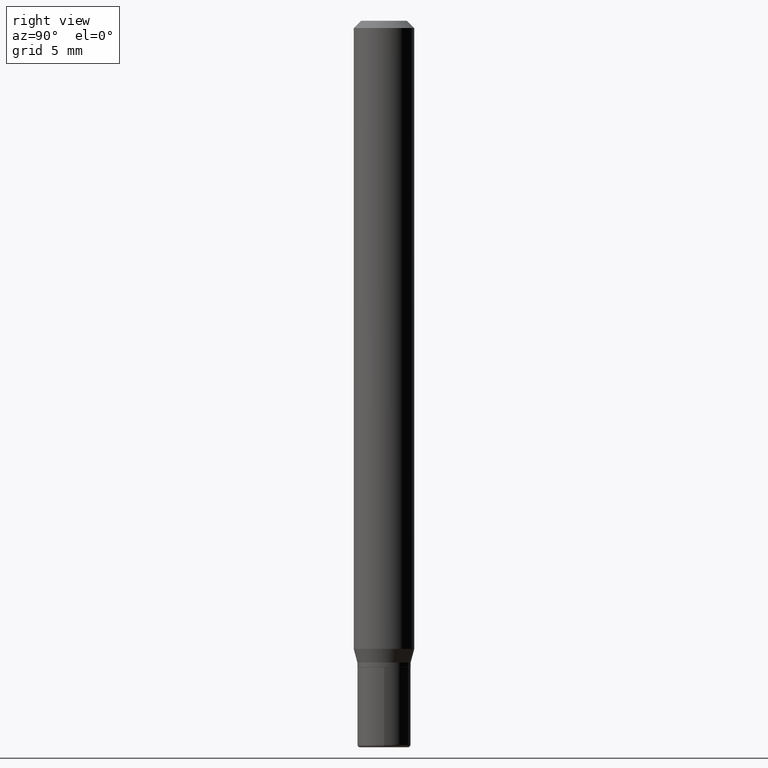
[diagram: clean part render]
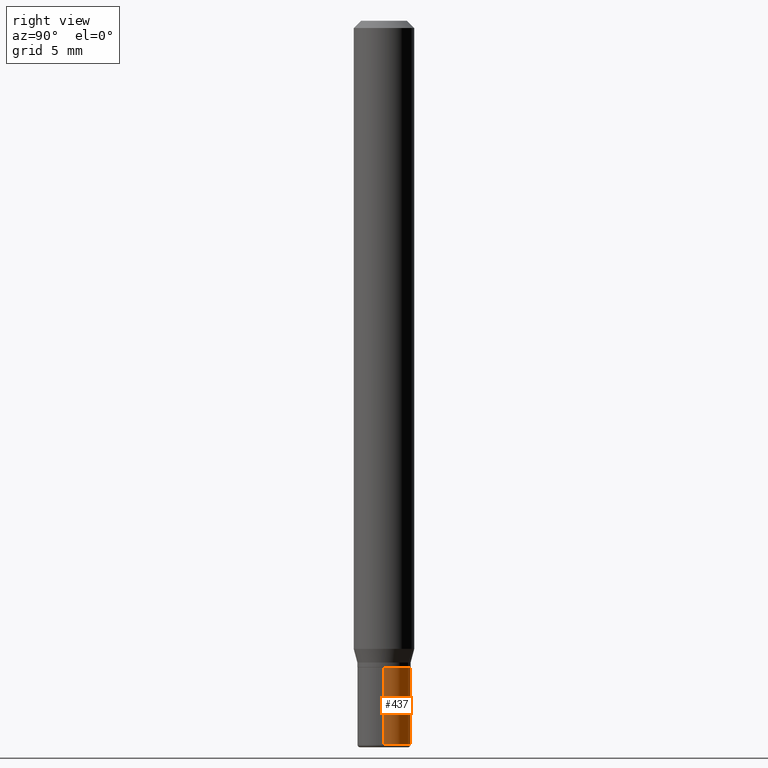
[diagram: same view with one face highlighted and labeled with its STEP entity id]
A machine part, right view. The second image highlights one B-rep face of the part: STEP entity #437.
In plain terms, the highlighted cylindrical surface (edge-blend (fillet) strip) has radius 1.397 mm, axis along (-0, 0, 1).
Its self-contained STEP definition (entity closure, byte-faithful):
#3 = EDGE_LOOP ( 'NONE', ( #322, #10, #500, #210 ) ) ;
#10 = ORIENTED_EDGE ( 'NONE', *, *, #382, .T. ) ;
#62 = DIRECTION ( 'NONE',  ( -2.445468806185136877E-29, 3.491481338843145188E-15, 1.000000000000000000 ) ) ;
#79 = VERTEX_POINT ( 'NONE', #499 ) ;
#80 = CARTESIAN_POINT ( 'NONE',  ( 0.05500000000000000028, -5.045190534628344107E-15, -1.335000000000000187 ) ) ;
#88 = CARTESIAN_POINT ( 'NONE',  ( -0.05500000000000009742, 3.907985046680557945E-16, -2.705414299640202916E-30 ) ) ;
#90 = CARTESIAN_POINT ( 'NONE',  ( -0.05500000000000000028, -4.549647589794996077E-15, -1.335000000000000187 ) ) ;
#92 = VERTEX_POINT ( 'NONE', #139 ) ;
#119 = LINE ( 'NONE', #88, #167 ) ;
#131 = EDGE_CURVE ( 'NONE', #92, #79, #504, .T. ) ;
#139 = CARTESIAN_POINT ( 'NONE',  ( 0.05500000000000018069, -5.603827548843249703E-15, -1.495000000000000107 ) ) ;
#167 = VECTOR ( 'NONE', #515, 39.37007874015748143 ) ;
#184 = VERTEX_POINT ( 'NONE', #90 ) ;
#199 = CIRCLE ( 'NONE', #377, 0.05500000000000000028 ) ;
#209 = CARTESIAN_POINT ( 'NONE',  ( 3.264700856257157760E-29, -4.661127587355599122E-15, -1.335000000000000187 ) ) ;
#210 = ORIENTED_EDGE ( 'NONE', *, *, #329, .F. ) ;
#212 = DIRECTION ( 'NONE',  ( -2.445468806185136597E-29, 3.491481338843145583E-15, 1.000000000000000000 ) ) ;
#217 = CARTESIAN_POINT ( 'NONE',  ( 0.000000000000000000, 0.000000000000000000, 0.000000000000000000 ) ) ;
#257 = CARTESIAN_POINT ( 'NONE',  ( 3.655975865246779122E-29, -5.219764601570503141E-15, -1.495000000000000107 ) ) ;
#278 = DIRECTION ( 'NONE',  ( 1.000000000000000000, -6.982962677686262766E-15, 0.000000000000000000 ) ) ;
#320 = AXIS2_PLACEMENT_3D ( 'NONE', #257, #425, #348 ) ;
#322 = ORIENTED_EDGE ( 'NONE', *, *, #131, .T. ) ;
#329 = EDGE_CURVE ( 'NONE', #92, #366, #351, .T. ) ;
#335 = FACE_OUTER_BOUND ( 'NONE', #3, .T. ) ;
#348 = DIRECTION ( 'NONE',  ( 1.000000000000000000, -6.982962677686274599E-15, 0.000000000000000000 ) ) ;
#351 = LINE ( 'NONE', #398, #497 ) ;
#366 = VERTEX_POINT ( 'NONE', #80 ) ;
#377 = AXIS2_PLACEMENT_3D ( 'NONE', #209, #212, #278 ) ;
#382 = EDGE_CURVE ( 'NONE', #79, #184, #119, .T. ) ;
#384 = EDGE_CURVE ( 'NONE', #366, #184, #199, .T. ) ;
#398 = CARTESIAN_POINT ( 'NONE',  ( 0.05500000000000009742, -3.840629472727453298E-16, 2.681897226687769380E-30 ) ) ;
#405 = CYLINDRICAL_SURFACE ( 'NONE', #420, 0.05500000000000009742 ) ;
#420 = AXIS2_PLACEMENT_3D ( 'NONE', #217, #487, #518 ) ;
#425 = DIRECTION ( 'NONE',  ( -2.445468806185136597E-29, 3.491481338843145583E-15, 1.000000000000000000 ) ) ;
#437 = ADVANCED_FACE ( 'NONE', ( #335 ), #405, .T. ) ;
#487 = DIRECTION ( 'NONE',  ( -2.445468806185136597E-29, 3.491481338843145583E-15, 1.000000000000000000 ) ) ;
#497 = VECTOR ( 'NONE', #62, 39.37007874015748143 ) ;
#499 = CARTESIAN_POINT ( 'NONE',  ( -0.05500000000000018069, -4.549647589794995288E-15, -1.495000000000000107 ) ) ;
#500 = ORIENTED_EDGE ( 'NONE', *, *, #384, .F. ) ;
#504 = CIRCLE ( 'NONE', #320, 0.05500000000000018069 ) ;
#515 = DIRECTION ( 'NONE',  ( -2.445468806185136877E-29, 3.491481338843145188E-15, 1.000000000000000000 ) ) ;
#518 = DIRECTION ( 'NONE',  ( 1.000000000000000000, -6.982962677686266711E-15, 4.876176775795935793E-29 ) ) ;